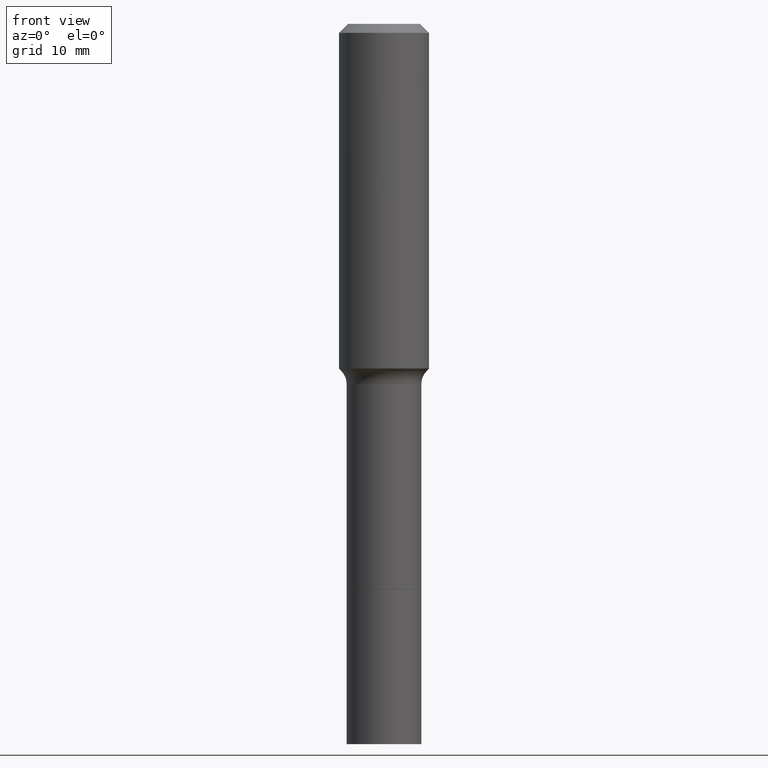
[diagram: clean part render]
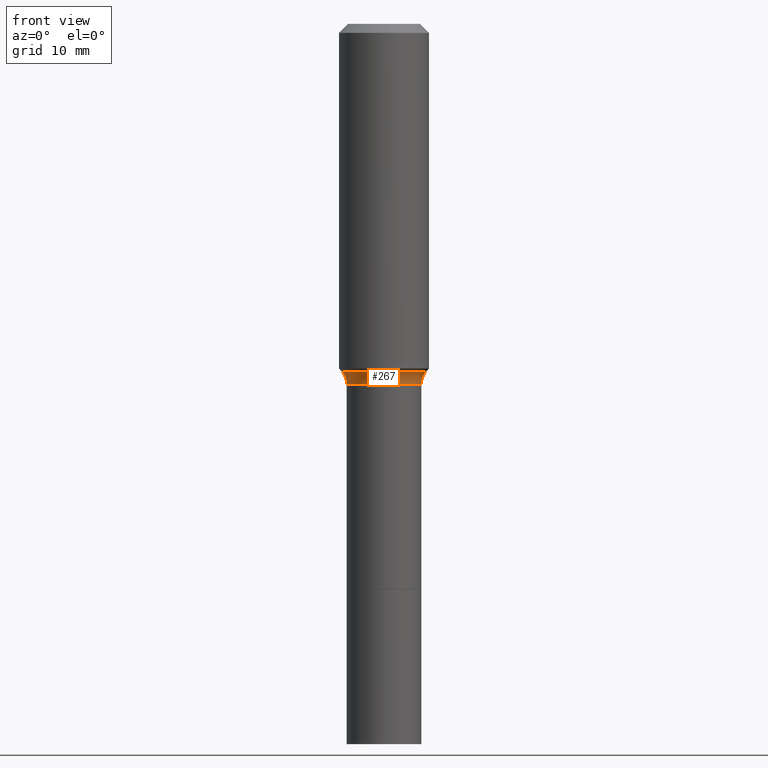
[diagram: same view with one face highlighted and labeled with its STEP entity id]
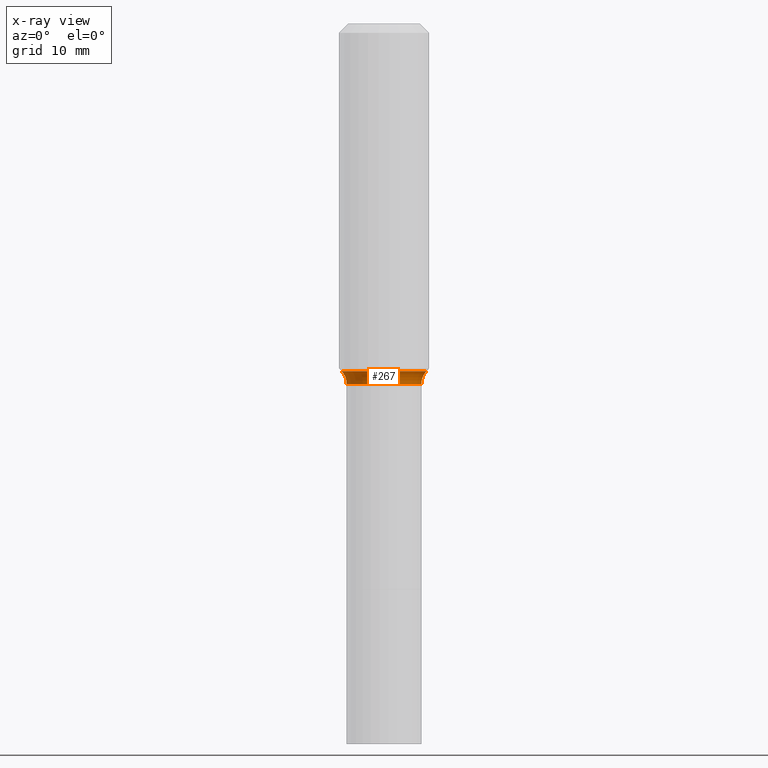
[diagram: x-ray of the same camera — body ghosted, the highlighted face saturated]
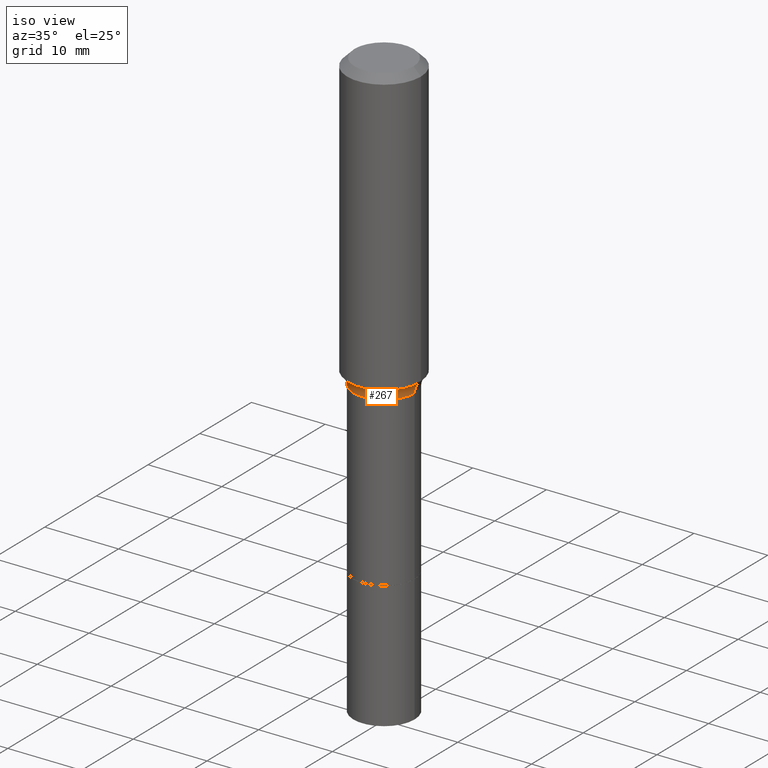
[diagram: same view with one face highlighted and labeled with its STEP entity id]
A machine part, front view. The second image highlights one B-rep face of the part: STEP entity #267.
The next image is the same camera in x-ray: the body ghosted, the highlighted face saturated — about 0% of this face is hidden behind the body in this view.
A second angle (iso view) of the same face is appended — the face is thin or edge-on in the first view.
In plain terms, the highlighted toroidal blend (fillet) surface has major radius 6.1824 mm and minor (blend) radius 2.032 mm.
Its self-contained STEP definition (entity closure, byte-faithful):
#13 = CARTESIAN_POINT ( 'NONE',  ( 3.850635182219116347E-29, -5.497686516142417553E-15, -1.574600000000000222 ) ) ;
#17 = CIRCLE ( 'NONE', #241, 0.1848917038704662730 ) ;
#19 = ORIENTED_EDGE ( 'NONE', *, *, #314, .F. ) ;
#37 = TOROIDAL_SURFACE ( 'NONE', #386, 0.2433999999999999220, 0.07999999999999998779 ) ;
#38 = CARTESIAN_POINT ( 'NONE',  ( 3.850635182219116347E-29, -5.497686516142417553E-15, -1.574600000000000222 ) ) ;
#40 = DIRECTION ( 'NONE',  ( 1.000000000000000000, -6.982962677686262766E-15, 0.000000000000000000 ) ) ;
#43 = DIRECTION ( 'NONE',  ( 1.000000000000000000, -6.982962677686265922E-15, 0.000000000000000000 ) ) ;
#45 = CARTESIAN_POINT ( 'NONE',  ( 0.1848917038704662730, -6.598283619901317980E-15, -1.520040131195000255 ) ) ;
#58 = CIRCLE ( 'NONE', #253, 0.07999999999999996003 ) ;
#75 = CARTESIAN_POINT ( 'NONE',  ( 0.1633999999999998787, -6.638702617676352518E-15, -1.574600000000000222 ) ) ;
#82 = CIRCLE ( 'NONE', #379, 0.07999999999999996003 ) ;
#84 = VERTEX_POINT ( 'NONE', #114 ) ;
#85 = CARTESIAN_POINT ( 'NONE',  ( 0.2433999999999999220, -7.197339631891254170E-15, -1.574600000000000222 ) ) ;
#86 = VERTEX_POINT ( 'NONE', #443 ) ;
#88 = DIRECTION ( 'NONE',  ( -6.982962677686266711E-15, -1.000000000000000000, 3.491481338843145583E-15 ) ) ;
#94 = DIRECTION ( 'NONE',  ( -1.000000000000000000, 7.105427357601001859E-15, 0.000000000000000000 ) ) ;
#114 = CARTESIAN_POINT ( 'NONE',  ( -0.1633999999999998787, -5.903461936716276090E-15, -1.574600000000000222 ) ) ;
#121 = DIRECTION ( 'NONE',  ( -2.445468806185136597E-29, 3.491481338843145583E-15, 1.000000000000000000 ) ) ;
#164 = EDGE_LOOP ( 'NONE', ( #19, #343, #249, #186 ) ) ;
#176 = DIRECTION ( 'NONE',  ( 7.105427357601001859E-15, 1.000000000000000000, -3.491481338843145583E-15 ) ) ;
#186 = ORIENTED_EDGE ( 'NONE', *, *, #358, .F. ) ;
#230 = CIRCLE ( 'NONE', #401, 0.1633999999999998787 ) ;
#241 = AXIS2_PLACEMENT_3D ( 'NONE', #245, #320, #445 ) ;
#242 = DIRECTION ( 'NONE',  ( 1.000000000000000000, -6.982962677686268288E-15, 4.883557194083114583E-29 ) ) ;
#245 = CARTESIAN_POINT ( 'NONE',  ( 3.717210724986936016E-29, -5.307191752360030282E-15, -1.520040131195000255 ) ) ;
#249 = ORIENTED_EDGE ( 'NONE', *, *, #442, .T. ) ;
#253 = AXIS2_PLACEMENT_3D ( 'NONE', #85, #88, #40 ) ;
#256 = FACE_OUTER_BOUND ( 'NONE', #164, .T. ) ;
#267 = ADVANCED_FACE ( 'NONE', ( #256 ), #37, .F. ) ;
#314 = EDGE_CURVE ( 'NONE', #86, #485, #17, .T. ) ;
#320 = DIRECTION ( 'NONE',  ( -2.445468806185136597E-29, 3.491481338843145583E-15, 1.000000000000000000 ) ) ;
#343 = ORIENTED_EDGE ( 'NONE', *, *, #392, .T. ) ;
#358 = EDGE_CURVE ( 'NONE', #485, #426, #58, .T. ) ;
#379 = AXIS2_PLACEMENT_3D ( 'NONE', #501, #176, #94 ) ;
#386 = AXIS2_PLACEMENT_3D ( 'NONE', #38, #121, #242 ) ;
#392 = EDGE_CURVE ( 'NONE', #86, #84, #82, .T. ) ;
#401 = AXIS2_PLACEMENT_3D ( 'NONE', #13, #403, #43 ) ;
#403 = DIRECTION ( 'NONE',  ( -2.445468806185136597E-29, 3.491481338843145583E-15, 1.000000000000000000 ) ) ;
#426 = VERTEX_POINT ( 'NONE', #75 ) ;
#442 = EDGE_CURVE ( 'NONE', #84, #426, #230, .T. ) ;
#443 = CARTESIAN_POINT ( 'NONE',  ( -0.1848917038704662730, -3.993457181485356184E-15, -1.520040131195000255 ) ) ;
#445 = DIRECTION ( 'NONE',  ( 1.000000000000000000, -6.982962677686268288E-15, 0.000000000000000000 ) ) ;
#485 = VERTEX_POINT ( 'NONE', #45 ) ;
#501 = CARTESIAN_POINT ( 'NONE',  ( -0.2433999999999999220, -3.768225497302334847E-15, -1.574600000000000222 ) ) ;